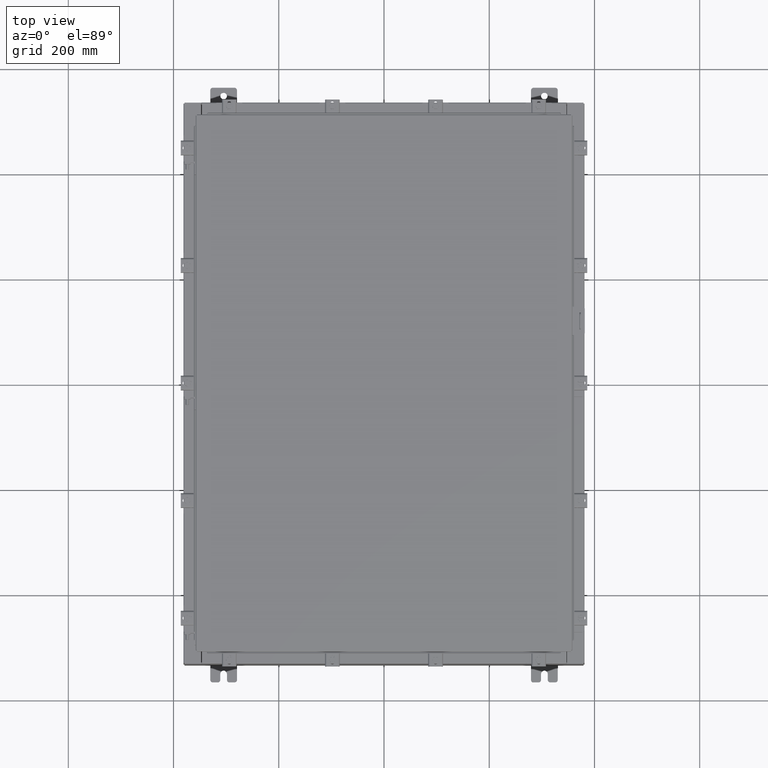
[diagram: clean part render]
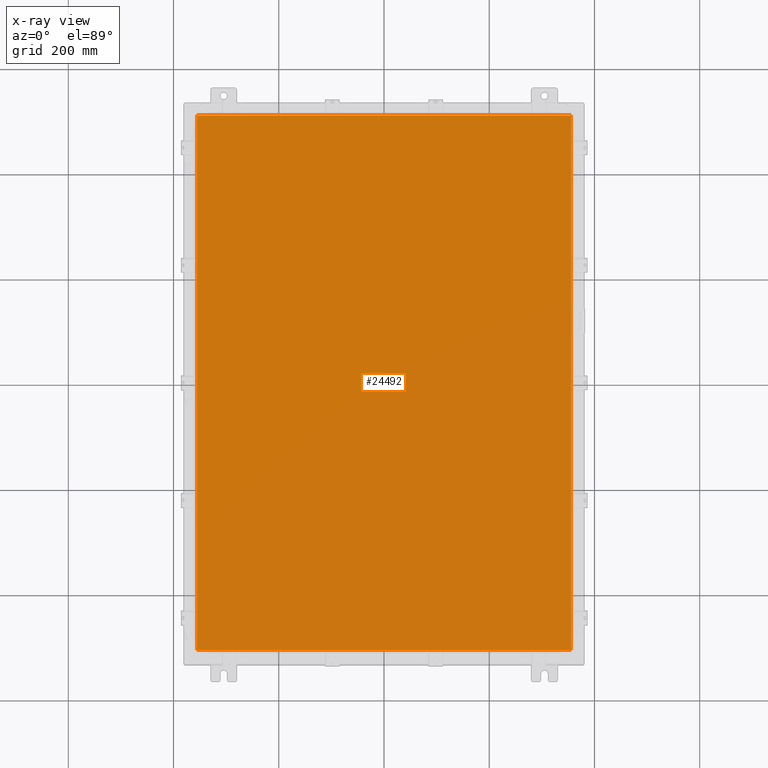
[diagram: x-ray — body ghosted, one internal face saturated and labeled with its STEP entity id]
A machine part, top view, then the same camera in x-ray: the body is ghosted and one INTERNAL B-rep face — a face not visible from any outside direction — is saturated and labeled: STEP entity #24492.
In plain terms, the highlighted planar face has unit normal (0, 0, -1).
Its self-contained STEP definition (entity closure, byte-faithful):
#431 = AXIS2_PLACEMENT_3D ( 'NONE', #14571, #5050, #18353 ) ;
#771 = VERTEX_POINT ( 'NONE', #22886 ) ;
#1074 = CARTESIAN_POINT ( 'NONE',  ( -13.99029999999999600, -20.00630000000001000, -0.07470000000000234800 ) ) ;
#1227 = PLANE ( 'NONE',  #431 ) ;
#2159 = DIRECTION ( 'NONE',  ( 0.0000000000000000000, -1.000000000000000000, 0.0000000000000000000 ) ) ;
#3525 = DIRECTION ( 'NONE',  ( 1.000000000000000000, -0.0000000000000000000, -0.0000000000000000000 ) ) ;
#4104 = EDGE_CURVE ( 'NONE', #9619, #6636, #22425, .T. ) ;
#5050 = DIRECTION ( 'NONE',  ( 0.0000000000000000000, 0.0000000000000000000, -1.000000000000000000 ) ) ;
#6192 = CARTESIAN_POINT ( 'NONE',  ( 13.99030000000000000, -20.00630000000000300, -0.07470000000000129300 ) ) ;
#6311 = LINE ( 'NONE', #6192, #15851 ) ;
#6636 = VERTEX_POINT ( 'NONE', #12428 ) ;
#7133 = CARTESIAN_POINT ( 'NONE',  ( 13.99029999999999800, 20.00630000000000700, -0.07469999999999804600 ) ) ;
#7440 = LINE ( 'NONE', #23066, #17529 ) ;
#8096 = VERTEX_POINT ( 'NONE', #17214 ) ;
#9619 = VERTEX_POINT ( 'NONE', #11306 ) ;
#9696 = ORIENTED_EDGE ( 'NONE', *, *, #4104, .F. ) ;
#11306 = CARTESIAN_POINT ( 'NONE',  ( -13.99029999999999800, -20.00630000000000700, -0.07470000000000000300 ) ) ;
#11697 = LINE ( 'NONE', #7133, #22326 ) ;
#11998 = ORIENTED_EDGE ( 'NONE', *, *, #24114, .F. ) ;
#12386 = VECTOR ( 'NONE', #3525, 39.37007874015748100 ) ;
#12428 = CARTESIAN_POINT ( 'NONE',  ( 13.99030000000000000, -20.00630000000000300, -0.07470000000000000300 ) ) ;
#14571 = CARTESIAN_POINT ( 'NONE',  ( 0.0000000000000000000, 0.0000000000000000000, -0.07470000000000000300 ) ) ;
#15851 = VECTOR ( 'NONE', #21448, 39.37007874015748100 ) ;
#16951 = ORIENTED_EDGE ( 'NONE', *, *, #21887, .F. ) ;
#17214 = CARTESIAN_POINT ( 'NONE',  ( -13.99029999999999800, 20.00630000000000300, -0.07470000000000000300 ) ) ;
#17529 = VECTOR ( 'NONE', #2159, 39.37007874015748100 ) ;
#18353 = DIRECTION ( 'NONE',  ( -1.000000000000000000, 0.0000000000000000000, -0.0000000000000000000 ) ) ;
#20386 = DIRECTION ( 'NONE',  ( -1.000000000000000000, -0.0000000000000000000, -0.0000000000000000000 ) ) ;
#21448 = DIRECTION ( 'NONE',  ( 0.0000000000000000000, 1.000000000000000000, 0.0000000000000000000 ) ) ;
#21644 = FACE_OUTER_BOUND ( 'NONE', #22625, .T. ) ;
#21887 = EDGE_CURVE ( 'NONE', #771, #8096, #11697, .T. ) ;
#22199 = EDGE_CURVE ( 'NONE', #6636, #771, #6311, .T. ) ;
#22326 = VECTOR ( 'NONE', #20386, 39.37007874015748100 ) ;
#22425 = LINE ( 'NONE', #1074, #12386 ) ;
#22625 = EDGE_LOOP ( 'NONE', ( #24345, #9696, #11998, #16951 ) ) ;
#22886 = CARTESIAN_POINT ( 'NONE',  ( 13.99030000000000000, 20.00630000000000300, -0.07470000000000000300 ) ) ;
#23066 = CARTESIAN_POINT ( 'NONE',  ( -13.99029999999999800, 20.00630000000000300, -0.07470000000000019700 ) ) ;
#24114 = EDGE_CURVE ( 'NONE', #8096, #9619, #7440, .T. ) ;
#24345 = ORIENTED_EDGE ( 'NONE', *, *, #22199, .F. ) ;
#24492 = ADVANCED_FACE ( 'NONE', ( #21644 ), #1227, .T. ) ;